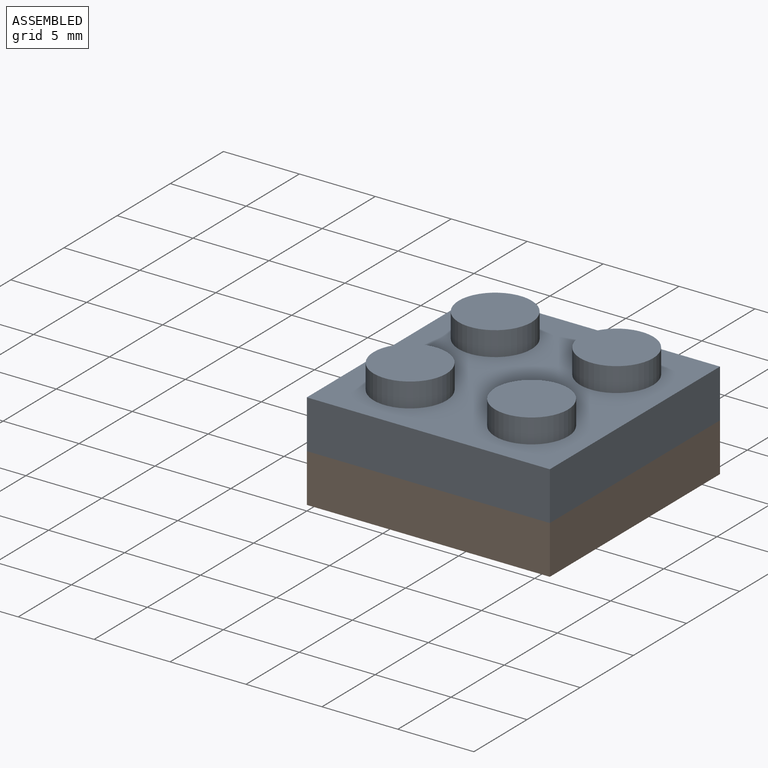
[diagram: assembled view]
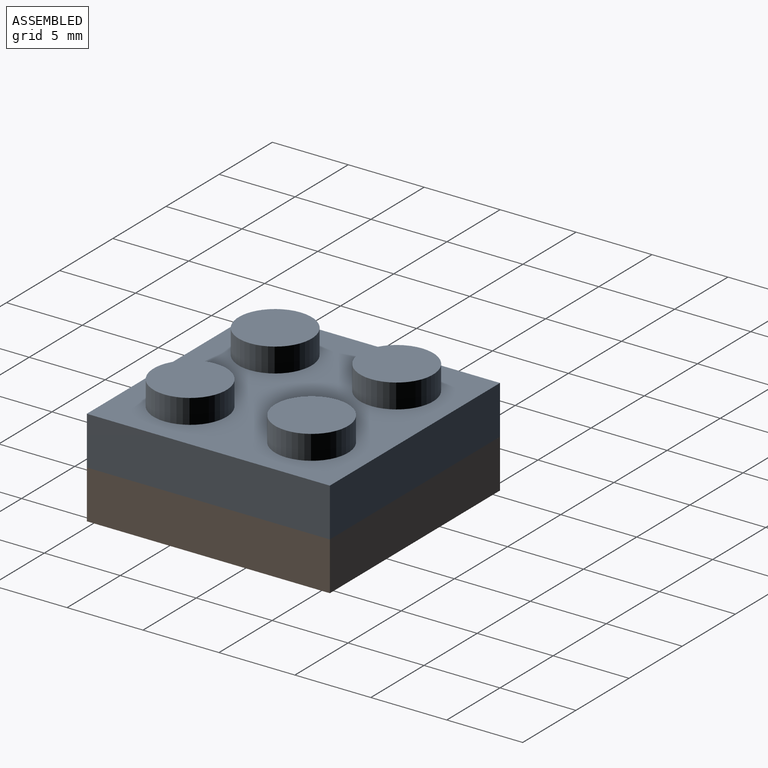
[diagram: assembled view, second angle]
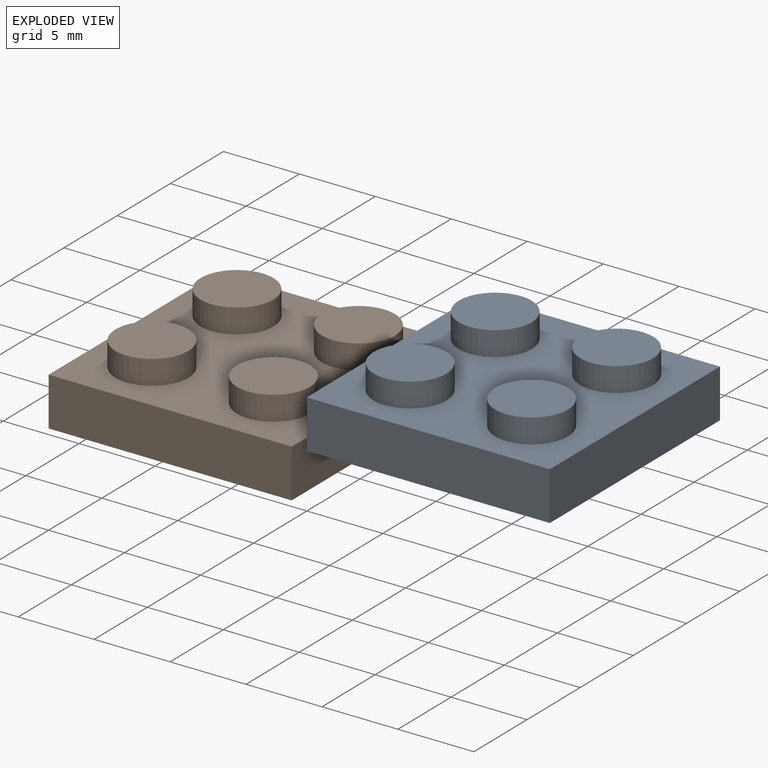
[diagram: exploded view]
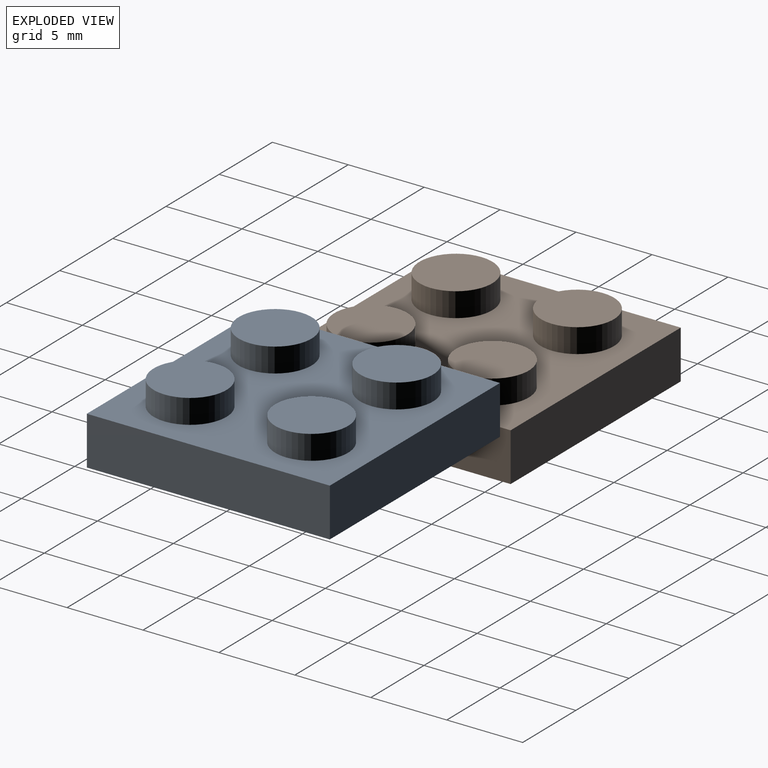
[diagram: exploded view, second angle]
ASSEMBLY  parts=2 mates=3
PART A: 31 faces, bbox 16x16x4.8 mm
  f0: plane 16x16mm, normal (0,0,-1), area 92.2mm2, adj f1,f2,f3,f4,f14,f15,f16,f17
  f1: plane 16x3.2mm, normal (-1,0,0), area 51.2mm2, adj f0,f2,f4,f5
  f2: plane 16x3.2mm, normal (0,-1,0), area 51.2mm2, adj f0,f1,f3,f5
  f3: plane 16x3.2mm, normal (1,0,0), area 51.2mm2, adj f0,f2,f4,f5
  f4: plane 16x3.2mm, normal (0,1,0), area 51.2mm2, adj f0,f1,f3,f5
  f5: plane 16x16mm, normal (0,0,1), area 183.6mm2, adj f1,f2,f3,f4,f6,f8,f10,f12
  f6: cylinder r=2.4mm len=4.8mm, axis (0,0,-1), area 24.1mm2, adj f5,f7
  f7: plane 4.8x4.8mm, normal (0,0,1), area 18.1mm2, adj f6
  f8: cylinder r=2.4mm len=4.8mm, axis (0,0,-1), area 24.1mm2, adj f5,f9
  f9: plane 4.8x4.8mm, normal (0,0,1), area 18.1mm2, adj f8
  f10: cylinder r=2.4mm len=4.8mm, axis (0,0,-1), area 24.1mm2, adj f5,f11
  f11: plane 4.8x4.8mm, normal (0,0,1), area 18.1mm2, adj f10
  f12: cylinder r=2.4mm len=4.8mm, axis (0,0,-1), area 24.1mm2, adj f5,f13
  f13: plane 4.8x4.8mm, normal (0,0,1), area 18.1mm2, adj f12
  f14: plane 12.8x1.6mm, normal (1,0,0), area 20.5mm2, adj f0,f15,f17,f18
  f15: plane 12.8x1.6mm, normal (0,1,0), area 20.5mm2, adj f0,f14,f16,f18
  f16: plane 12.8x1.6mm, normal (-1,0,0), area 20.5mm2, adj f0,f15,f17,f18
  f17: plane 12.8x1.6mm, normal (0,-1,0), area 20.5mm2, adj f0,f14,f16,f18
  f18: plane 12.8x12.8mm, normal (0,0,-1), area 122.5mm2, adj f14,f15,f16,f17,f19,f21,f23,f25
  f19: cylinder r=0.8mm len=1.6mm, axis (0,0,-1), area 8mm2, adj f18,f20
  f20: plane 1.6x1.6mm, normal (0,0,-1), area 2mm2, adj f19
  f21: cylinder r=0.8mm len=1.6mm, axis (0,0,-1), area 8mm2, adj f18,f22
  f22: plane 1.6x1.6mm, normal (0,0,-1), area 2mm2, adj f21
  f23: cylinder r=0.8mm len=1.6mm, axis (0,0,-1), area 8mm2, adj f18,f24
  f24: plane 1.6x1.6mm, normal (0,0,-1), area 2mm2, adj f23
  f25: cylinder r=0.8mm len=1.6mm, axis (0,0,-1), area 8mm2, adj f18,f26
  f26: plane 1.6x1.6mm, normal (0,0,-1), area 2mm2, adj f25
  f27: plane 6.51x6.51mm, normal (0,0,-1), area 15.2mm2, adj f28,f29
  f28: cylinder r=3.26mm len=6.51mm, axis (0,0,1), area 32.7mm2, adj f18,f27
  f29: cylinder r=2.4mm len=4.8mm, axis (0,0,1), area 24.1mm2, adj f27,f30
  f30: plane 4.8x4.8mm, normal (0,0,-1), area 18.1mm2, adj f29
PART B: same geometry as A
PLACE A t=(0,0,3.2)mm
PLACE B at identity fixed
MATE planar A.f1 <-> B.f1  axis (-1,0,0) through (0,8,4.8)mm
MATE planar A.f2 <-> B.f2  axis (0,-1,0) through (8,0,4.8)mm
MATE planar A.f28 <-> B.f5  axis (0,0,-1) through (8,8,3.2)mm
